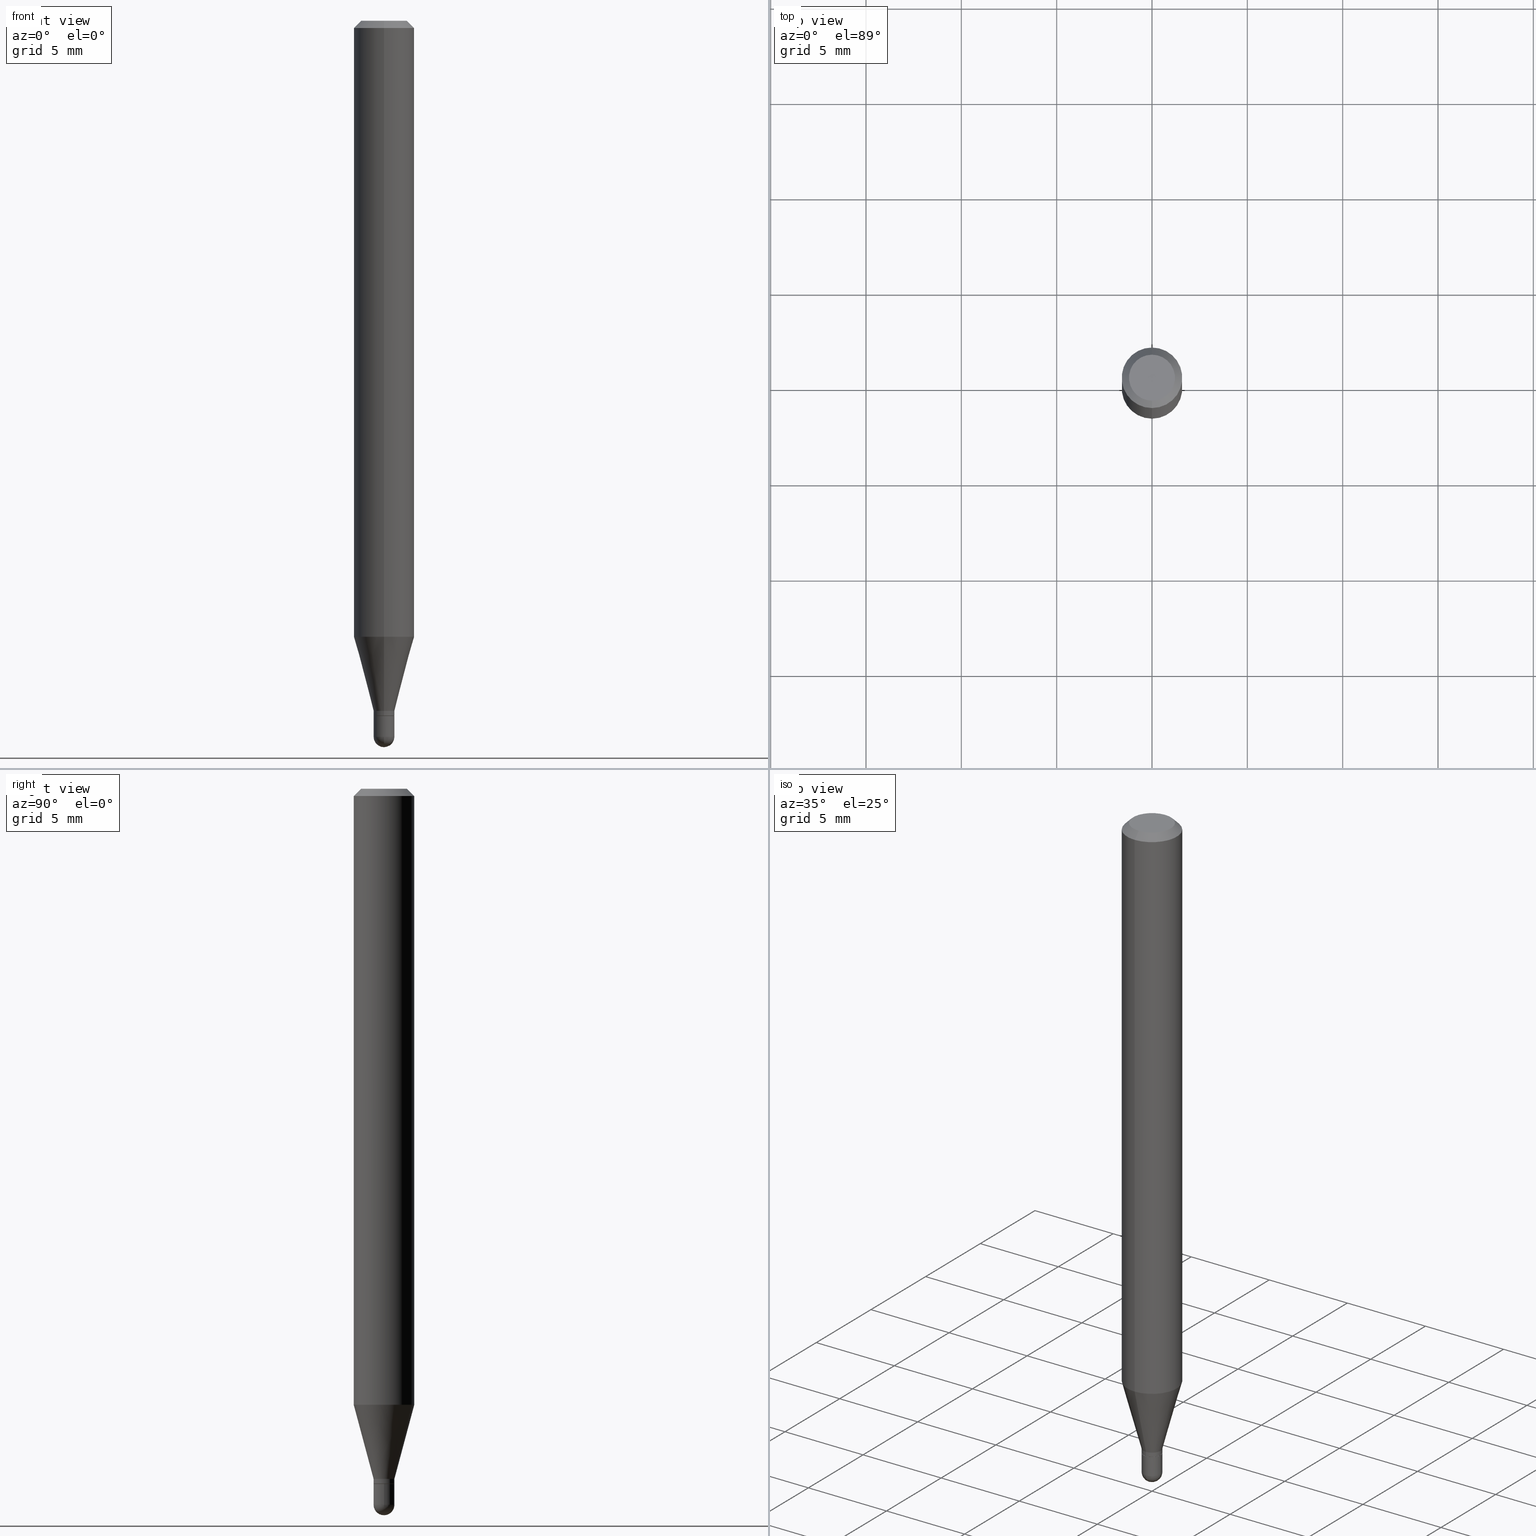
[diagram: canonical four-view strip — front | top / right | iso, engineering-drawing reading convention]
A machine part, canonical four-view strip (front | top / right | iso — engineering-drawing reading convention). The complete STEP part file that produces these views, byte-faithful:
ISO-10303-21;
HEADER;
FILE_DESCRIPTION (( 'STEP AP203' ),
    '1' );
FILE_NAME ('00707.STEP',
    '2024-03-07T18:04:39',
    ( '' ),
    ( '' ),
    'SwSTEP 2.0',
    'SolidWorks 2023',
    '' );
FILE_SCHEMA (( 'CONFIG_CONTROL_DESIGN' ));
ENDSEC;

DATA;
#1 = ORIENTED_EDGE ( 'NONE', *, *, #300, .F. ) ;
#2 = LINE ( 'NONE', #149, #217 ) ;
#3 = CIRCLE ( 'NONE', #387, 0.02149999999999991848 ) ;
#4 = CONICAL_SURFACE ( 'NONE', #348, 0.06250000000000000000, 0.7853981633974483900 ) ;
#5 = ADVANCED_FACE ( 'NONE', ( #263 ), #65, .F. ) ;
#6 = DIRECTION ( 'NONE',  ( -6.982962677686265922E-15, -1.000000000000000000, 0.000000000000000000 ) ) ;
#7 = CARTESIAN_POINT ( 'NONE',  ( 4.440892098500938748E-16, 0.06249999999999995143, -0.01500000000000022669 ) ) ;
#8 = CARTESIAN_POINT ( 'NONE',  ( 3.615625629944724521E-29, -5.162155159479591157E-15, -1.478500000000000147 ) ) ;
#9 = CARTESIAN_POINT ( 'NONE',  ( 0.000000000000000000, 0.000000000000000000, 0.000000000000000000 ) ) ;
#10 = DIRECTION ( 'NONE',  ( -2.445456596883876377E-29, 3.491498823257460544E-15, 1.000000000000000000 ) ) ;
#11 = CONICAL_SURFACE ( 'NONE', #243, 0.02099999999999999784, 0.7853981633974739252 ) ;
#12 = FACE_OUTER_BOUND ( 'NONE', #58, .T. ) ;
#13 = FACE_OUTER_BOUND ( 'NONE', #99, .T. ) ;
#14 = CARTESIAN_POINT ( 'NONE',  ( 2.984279490192748343E-16, 0.02149999999999494329, -1.425000000000000266 ) ) ;
#15 = ORIENTED_EDGE ( 'NONE', *, *, #395, .T. ) ;
#16 = VECTOR ( 'NONE', #294, 39.37007874015748143 ) ;
#17 = AXIS2_PLACEMENT_3D ( 'NONE', #490, #371, #332 ) ;
#18 = EDGE_LOOP ( 'NONE', ( #174, #100, #187, #223, #309 ) ) ;
#19 = APPROVAL ( #264, 'UNSPECIFIED' ) ;
#20 = DIRECTION ( 'NONE',  ( -2.445456596883876658E-29, 3.491498823257460150E-15, 1.000000000000000000 ) ) ;
#21 = VERTEX_POINT ( 'NONE', #75 ) ;
#22 = CARTESIAN_POINT ( 'NONE',  ( 3.668184895325816808E-31, -5.237248234886194588E-17, -0.01500000000000000812 ) ) ;
#23 = ORIENTED_EDGE ( 'NONE', *, *, #296, .F. ) ;
#24 = VERTEX_POINT ( 'NONE', #110 ) ;
#25 = ADVANCED_FACE ( 'NONE', ( #321 ), #439, .T. ) ;
#26 = ORIENTED_EDGE ( 'NONE', *, *, #322, .F. ) ;
#27 = CIRCLE ( 'NONE', #208, 0.06250000000000000000 ) ;
#28 = PERSON_AND_ORGANIZATION ( #405, #432 ) ;
#29 = DIRECTION ( 'NONE',  ( -6.982962677686265922E-15, -1.000000000000000000, 0.000000000000000000 ) ) ;
#30 = PRODUCT_DEFINITION_SHAPE ( 'NONE', 'NONE',  #315 ) ;
#31 = ORIENTED_EDGE ( 'NONE', *, *, #274, .F. ) ;
#32 = APPROVAL_STATUS ( 'not_yet_approved' ) ;
#33 = CARTESIAN_POINT ( 'NONE',  ( 3.613787022422989032E-29, -5.164788150097758398E-15, -1.478500000000000147 ) ) ;
#34 = COORDINATED_UNIVERSAL_TIME_OFFSET ( 5, 0, .BEHIND. ) ;
#35 = DIRECTION ( 'NONE',  ( -2.445456596883876377E-29, 3.491498823257460544E-15, 1.000000000000000000 ) ) ;
#36 = AXIS2_PLACEMENT_3D ( 'NONE', #273, #155, #192 ) ;
#37 = CC_DESIGN_APPROVAL ( #66, ( #350 ) ) ;
#38 = DIRECTION ( 'NONE',  ( -2.445456596883876658E-29, 3.491498823257460150E-15, 1.000000000000000000 ) ) ;
#39 = FACE_OUTER_BOUND ( 'NONE', #140, .T. ) ;
#40 = EDGE_CURVE ( 'NONE', #311, #351, #312, .T. ) ;
#41 = DIRECTION ( 'NONE',  ( 1.000000000000000000, -6.982962677686263555E-15, 0.000000000000000000 ) ) ;
#42 = FACE_OUTER_BOUND ( 'NONE', #139, .T. ) ;
#43 = VECTOR ( 'NONE', #472, 39.37007874015748143 ) ;
#44 = DIRECTION ( 'NONE',  ( -7.105427357601001070E-15, -1.000000000000000000, 0.000000000000000000 ) ) ;
#45 = FACE_OUTER_BOUND ( 'NONE', #266, .T. ) ;
#46 = LINE ( 'NONE', #198, #280 ) ;
#47 = DIRECTION ( 'NONE',  ( -2.445456596883876377E-29, 3.491498823257460544E-15, 1.000000000000000000 ) ) ;
#48 = DIRECTION ( 'NONE',  ( -2.445468806185136597E-29, 3.491481338843145583E-15, 1.000000000000000000 ) ) ;
#49 = CIRCLE ( 'NONE', #477, 0.02149999999999992195 ) ;
#50 = VECTOR ( 'NONE', #434, 39.37007874015748143 ) ;
#51 = CC_DESIGN_APPROVAL ( #19, ( #315 ) ) ;
#52 = DIRECTION ( 'NONE',  ( 1.000000000000000000, -6.982962677686265922E-15, 4.876176775795935232E-29 ) ) ;
#53 = DIRECTION ( 'NONE',  ( -6.982962677686265922E-15, -1.000000000000000000, 3.491498823257460150E-15 ) ) ;
#54 = ORIENTED_EDGE ( 'NONE', *, *, #188, .F. ) ;
#55 = ORIENTED_EDGE ( 'NONE', *, *, #322, .T. ) ;
#56 = ADVANCED_FACE ( 'NONE', ( #79 ), #228, .T. ) ;
#57 = LENGTH_MEASURE_WITH_UNIT ( LENGTH_MEASURE( 0.02539999999999999897 ), #385 );
#58 = EDGE_LOOP ( 'NONE', ( #427, #219, #145, #31 ) ) ;
#59 = ORIENTED_EDGE ( 'NONE', *, *, #496, .F. ) ;
#60 = DIRECTION ( 'NONE',  ( 2.445456596883876377E-29, -3.491498823257460544E-15, -1.000000000000000000 ) ) ;
#61 = AXIS2_PLACEMENT_3D ( 'NONE', #195, #190, #29 ) ;
#62 = APPROVAL_PERSON_ORGANIZATION ( #28, #378, #231 ) ;
#63 = ORIENTED_EDGE ( 'NONE', *, *, #393, .T. ) ;
#64 = DIRECTION ( 'NONE',  ( 2.445456596883876377E-29, -3.491498823257460544E-15, -1.000000000000000000 ) ) ;
#65 = PLANE ( 'NONE',  #323 ) ;
#66 = APPROVAL ( #69, 'UNSPECIFIED' ) ;
#67 = CARTESIAN_POINT ( 'NONE',  ( 0.000000000000000000, 0.000000000000000000, 0.000000000000000000 ) ) ;
#68 = EDGE_LOOP ( 'NONE', ( #402, #419, #59, #301 ) ) ;
#69 = APPROVAL_STATUS ( 'not_yet_approved' ) ;
#70 = DIRECTION ( 'NONE',  ( -2.445456596883876377E-29, 3.491498823257460544E-15, 1.000000000000000000 ) ) ;
#71 = ORIENTED_EDGE ( 'NONE', *, *, #185, .F. ) ;
#72 = AXIS2_PLACEMENT_3D ( 'NONE', #115, #287, #442 ) ;
#73 = AXIS2_PLACEMENT_3D ( 'NONE', #484, #48, #127 ) ;
#74 = APPROVAL_DATE_TIME ( #392, #66 ) ;
#75 = CARTESIAN_POINT ( 'NONE',  ( 0.02150000000000000522, -5.236349137930007031E-15, -1.478500000000000147 ) ) ;
#76 = CALENDAR_DATE ( 2024, 7, 3 ) ;
#77 = CARTESIAN_POINT ( 'NONE',  ( -3.773273898774340269E-16, -0.04749999999999999362, 1.569867050225781996E-16 ) ) ;
#78 = CALENDAR_DATE ( 2024, 7, 3 ) ;
#79 = FACE_OUTER_BOUND ( 'NONE', #303, .T. ) ;
#80 = EDGE_LOOP ( 'NONE', ( #500, #468, #420, #277 ) ) ;
#81 = CIRCLE ( 'NONE', #270, 0.02150000000000002257 ) ;
#82 = DIRECTION ( 'NONE',  ( 6.982962677686265922E-15, 1.000000000000000000, -3.491498823257460150E-15 ) ) ;
#83 = EDGE_CURVE ( 'NONE', #252, #351, #49, .T. ) ;
#84 = ORIENTED_EDGE ( 'NONE', *, *, #185, .T. ) ;
#85 = CARTESIAN_POINT ( 'NONE',  ( -1.501336975702196014E-16, -0.02150000000000500816, -1.434500000000000330 ) ) ;
#86 = DIRECTION ( 'NONE',  ( -2.445456596883876377E-29, 3.491498823257460544E-15, 1.000000000000000000 ) ) ;
#87 = DIRECTION ( 'NONE',  ( 1.000000000000000000, -6.982962677686263555E-15, 0.000000000000000000 ) ) ;
#88 = AXIS2_PLACEMENT_3D ( 'NONE', #126, #326, #41 ) ;
#89 = CIRCLE ( 'NONE', #105, 0.02150000000000000175 ) ;
#90 = DIRECTION ( 'NONE',  ( 1.000000000000000000, -6.982962677686265133E-15, 0.000000000000000000 ) ) ;
#91 = CYLINDRICAL_SURFACE ( 'NONE', #114, 0.02149999999999991848 ) ;
#92 = DIRECTION ( 'NONE',  ( -6.982962677686266711E-15, -1.000000000000000000, 3.491498823257460939E-15 ) ) ;
#93 = DIRECTION ( 'NONE',  ( -2.445468806185136597E-29, 3.491481338843145583E-15, 1.000000000000000000 ) ) ;
#94 = CONICAL_SURFACE ( 'NONE', #61, 0.02099999999999999784, 0.7853981633974739252 ) ;
#95 = DIRECTION ( 'NONE',  ( 6.982962677686265922E-15, 1.000000000000000000, -3.483106191921935554E-15 ) ) ;
#96 = APPROVAL_PERSON_ORGANIZATION ( #225, #66, #357 ) ;
#97 = DIRECTION ( 'NONE',  ( -2.445468806185136597E-29, 3.491481338843145583E-15, 1.000000000000000000 ) ) ;
#98 = EDGE_CURVE ( 'NONE', #499, #384, #158, .T. ) ;
#99 = EDGE_LOOP ( 'NONE', ( #216, #382, #337, #400 ) ) ;
#100 = ORIENTED_EDGE ( 'NONE', *, *, #241, .T. ) ;
#101 = CARTESIAN_POINT ( 'NONE',  ( 3.667283905516837151E-29, -5.238538503573802192E-15, -1.500000000000000222 ) ) ;
#102 = ORIENTED_EDGE ( 'NONE', *, *, #224, .T. ) ;
#103 = CARTESIAN_POINT ( 'NONE',  ( -1.527666881883854620E-16, -0.02150000000000517816, -1.478500000000000147 ) ) ;
#104 = CIRCLE ( 'NONE', #72, 0.02150000000000002257 ) ;
#105 = AXIS2_PLACEMENT_3D ( 'NONE', #206, #97, #367 ) ;
#106 = EDGE_LOOP ( 'NONE', ( #494, #137 ) ) ;
#107 = PERSON_AND_ORGANIZATION ( #405, #432 ) ;
#108 = VERTEX_POINT ( 'NONE', #119 ) ;
#109 = PERSON_AND_ORGANIZATION_ROLE ( 'creator' ) ;
#110 = CARTESIAN_POINT ( 'NONE',  ( 4.440892098500934804E-16, 0.06249999999999553135, -1.271985916889676771 ) ) ;
#111 = PRODUCT ( '00707', '00707', '', ( #342 ) ) ;
#112 = DIRECTION ( 'NONE',  ( 6.982962677686266711E-15, 1.000000000000000000, 0.000000000000000000 ) ) ;
#113 = AXIS2_PLACEMENT_3D ( 'NONE', #8, #164, #87 ) ;
#114 = AXIS2_PLACEMENT_3D ( 'NONE', #408, #373, #327 ) ;
#115 = CARTESIAN_POINT ( 'NONE',  ( 3.613787022422989032E-29, -5.164788150097758398E-15, -1.478500000000000147 ) ) ;
#116 = APPROVAL_DATE_TIME ( #268, #19 ) ;
#117 = DIRECTION ( 'NONE',  ( -6.982962677686266711E-15, -1.000000000000000000, 0.000000000000000000 ) ) ;
#118 = EDGE_CURVE ( 'NONE', #501, #150, #269, .T. ) ;
#119 = CARTESIAN_POINT ( 'NONE',  ( 1.501336975702909686E-16, 0.02149999999999484962, -1.478500000000000147 ) ) ;
#120 = AXIS2_PLACEMENT_3D ( 'NONE', #390, #234, #512 ) ;
#121 = ADVANCED_FACE ( 'NONE', ( #435 ), #11, .T. ) ;
#122 = CARTESIAN_POINT ( 'NONE',  ( 3.509247736875671532E-29, -5.010275721239914035E-15, -1.435000000000000053 ) ) ;
#123 = ORIENTED_EDGE ( 'NONE', *, *, #395, .F. ) ;
#124 = CARTESIAN_POINT ( 'NONE',  ( 3.484775650559524181E-29, -4.975385823141882054E-15, -1.425000000000000266 ) ) ;
#125 = LINE ( 'NONE', #297, #16 ) ;
#126 = CARTESIAN_POINT ( 'NONE',  ( 3.615625629944724521E-29, -5.162155159479591157E-15, -1.478500000000000147 ) ) ;
#127 = DIRECTION ( 'NONE',  ( 1.000000000000000000, -6.982962677686265922E-15, 4.876176775795935232E-29 ) ) ;
#128 = CC_DESIGN_SECURITY_CLASSIFICATION ( #160, ( #350 ) ) ;
#129 = DIRECTION ( 'NONE',  ( 1.839019923739601104E-15, 0.2588190451025250693, 0.9659258262890670910 ) ) ;
#130 = CARTESIAN_POINT ( 'NONE',  ( 3.110586351601244859E-29, -4.441137332020368140E-15, -1.271985916889676549 ) ) ;
#131 = DIRECTION ( 'NONE',  ( 6.982962677686265922E-15, 1.000000000000000000, -3.483106191921935554E-15 ) ) ;
#132 = EDGE_CURVE ( 'NONE', #351, #252, #167, .T. ) ;
#133 = DIRECTION ( 'NONE',  ( -2.445468806185136877E-29, 3.491481338843145188E-15, 1.000000000000000000 ) ) ;
#134 = AXIS2_PLACEMENT_3D ( 'NONE', #328, #365, #486 ) ;
#135 = CARTESIAN_POINT ( 'NONE',  ( 4.440892098500625669E-16, 0.06250000000000000000, -2.182186764535912840E-16 ) ) ;
#136 = DIMENSIONAL_EXPONENTS ( 1.000000000000000000, 0.000000000000000000, 0.000000000000000000, 0.000000000000000000, 0.000000000000000000, 0.000000000000000000, 0.000000000000000000 ) ;
#137 = ORIENTED_EDGE ( 'NONE', *, *, #423, .T. ) ;
#138 = DIRECTION ( 'NONE',  ( 0.000000000000000000, 0.000000000000000000, 1.000000000000000000 ) ) ;
#139 = EDGE_LOOP ( 'NONE', ( #84, #391, #215, #426, #55 ) ) ;
#140 = EDGE_LOOP ( 'NONE', ( #159, #161, #299, #343 ) ) ;
#141 = PERSON_AND_ORGANIZATION ( #405, #432 ) ;
#142 = VERTEX_POINT ( 'NONE', #77 ) ;
#143 = DIRECTION ( 'NONE',  ( -6.982962677686265922E-15, -1.000000000000000000, 3.491498823257460544E-15 ) ) ;
#144 = AXIS2_PLACEMENT_3D ( 'NONE', #173, #302, #53 ) ;
#145 = ORIENTED_EDGE ( 'NONE', *, *, #496, .T. ) ;
#146 = DATE_TIME_ROLE ( 'classification_date' ) ;
#147 = VERTEX_POINT ( 'NONE', #186 ) ;
#148 = ADVANCED_FACE ( 'NONE', ( #39 ), #182, .T. ) ;
#149 = CARTESIAN_POINT ( 'NONE',  ( 0.02150000000000000522, -1.501336975702547550E-16, 1.048378006796126378E-30 ) ) ;
#150 = VERTEX_POINT ( 'NONE', #437 ) ;
#151 = PERSON_AND_ORGANIZATION ( #405, #432 ) ;
#152 = CARTESIAN_POINT ( 'NONE',  ( -1.501336975702193055E-16, -0.02150000000000489714, -1.425000000000000266 ) ) ;
#153 = VECTOR ( 'NONE', #133, 39.37007874015748143 ) ;
#154 = PERSON_AND_ORGANIZATION ( #405, #432 ) ;
#155 = DIRECTION ( 'NONE',  ( -2.445456596883876377E-29, 3.491498823257460544E-15, 1.000000000000000000 ) ) ;
#156 = DIRECTION ( 'NONE',  ( -4.937700262164674260E-15, -0.7071067811865632269, 0.7071067811865319186 ) ) ;
#157 = CARTESIAN_POINT ( 'NONE',  ( 3.509230216528362656E-29, -5.010300811374456056E-15, -1.435000000000000053 ) ) ;
#158 = CIRCLE ( 'NONE', #36, 0.02149999999999991848 ) ;
#159 = ORIENTED_EDGE ( 'NONE', *, *, #230, .T. ) ;
#160 = SECURITY_CLASSIFICATION ( '', '', #319 ) ;
#161 = ORIENTED_EDGE ( 'NONE', *, *, #376, .T. ) ;
#162 = DIRECTION ( 'NONE',  ( -2.445456596883876377E-29, 3.491498823257460544E-15, 1.000000000000000000 ) ) ;
#163 = LINE ( 'NONE', #415, #414 ) ;
#164 = DIRECTION ( 'NONE',  ( -2.445468806185136597E-29, 3.491481338843145583E-15, 1.000000000000000000 ) ) ;
#165 = CARTESIAN_POINT ( 'NONE',  ( -0.02150000000000000522, -4.933448752171330920E-15, -1.478500000000000147 ) ) ;
#166 = DIRECTION ( 'NONE',  ( -2.445456596883876377E-29, 3.491498823257460544E-15, 1.000000000000000000 ) ) ;
#167 = CIRCLE ( 'NONE', #347, 0.02149999999999992195 ) ;
#168 = AXIS2_PLACEMENT_3D ( 'NONE', #67, #257, #143 ) ;
#169 = PLANE ( 'NONE',  #227 ) ;
#170 = ADVANCED_FACE ( 'NONE', ( #361 ), #94, .T. ) ;
#171 = MANIFOLD_SOLID_BREP ( 'Body-Move/Copy2[2]', #452 ) ;
#172 = DIRECTION ( 'NONE',  ( -2.445456596883876658E-29, 3.491498823257460150E-15, 1.000000000000000000 ) ) ;
#173 = CARTESIAN_POINT ( 'NONE',  ( 3.509230216528362656E-29, -5.010300811374456056E-15, -1.435000000000000053 ) ) ;
#174 = ORIENTED_EDGE ( 'NONE', *, *, #416, .F. ) ;
#175 = CIRCLE ( 'NONE', #471, 0.06250000000000000000 ) ;
#176 = ORIENTED_EDGE ( 'NONE', *, *, #286, .T. ) ;
#177 = APPLICATION_CONTEXT ( 'configuration controlled 3d designs of mechanical parts and assemblies' ) ;
#178 = ORIENTED_EDGE ( 'NONE', *, *, #431, .T. ) ;
#179 = FACE_OUTER_BOUND ( 'NONE', #386, .T. ) ;
#180 = VERTEX_POINT ( 'NONE', #196 ) ;
#181 = APPLICATION_PROTOCOL_DEFINITION ( 'international standard', 'config_control_design', 1994, #317 ) ;
#182 = CONICAL_SURFACE ( 'NONE', #398, 0.02149999999999991848, 0.2617993877991502960 ) ;
#183 = CIRCLE ( 'NONE', #201, 0.02099999999999999784 ) ;
#184 = ORIENTED_EDGE ( 'NONE', *, *, #132, .F. ) ;
#185 = EDGE_CURVE ( 'NONE', #108, #456, #331, .T. ) ;
#186 = CARTESIAN_POINT ( 'NONE',  ( 0.02150000000000000175, -5.160409418810168864E-15, -1.435000000000000053 ) ) ;
#187 = ORIENTED_EDGE ( 'NONE', *, *, #296, .T. ) ;
#188 = EDGE_CURVE ( 'NONE', #481, #252, #429, .T. ) ;
#189 = SHAPE_DEFINITION_REPRESENTATION ( #30, #495 ) ;
#190 = DIRECTION ( 'NONE',  ( -2.445456596883876377E-29, 3.491498823257460544E-15, 1.000000000000000000 ) ) ;
#191 = PERSON_AND_ORGANIZATION_ROLE ( 'design_supplier' ) ;
#192 = DIRECTION ( 'NONE',  ( -6.982962677686266711E-15, -1.000000000000000000, 0.000000000000000000 ) ) ;
#193 = AXIS2_PLACEMENT_3D ( 'NONE', #124, #162, #246 ) ;
#194 = AXIS2_PLACEMENT_3D ( 'NONE', #335, #222, #451 ) ;
#195 = CARTESIAN_POINT ( 'NONE',  ( 3.509230216528362656E-29, -5.010300811374456056E-15, -1.435000000000000053 ) ) ;
#196 = CARTESIAN_POINT ( 'NONE',  ( -0.02150000000000000175, -4.933448752171330920E-15, -1.435000000000000053 ) ) ;
#197 = VERTEX_POINT ( 'NONE', #363 ) ;
#198 = CARTESIAN_POINT ( 'NONE',  ( 4.364351673553919652E-16, 0.06249999999999995143, -0.01500000000000022669 ) ) ;
#199 = CIRCLE ( 'NONE', #413, 0.02099999999999999784 ) ;
#200 = CARTESIAN_POINT ( 'NONE',  ( 1.527666881884555227E-16, 0.02149999999999483921, -1.434500000000000330 ) ) ;
#201 = AXIS2_PLACEMENT_3D ( 'NONE', #443, #166, #450 ) ;
#202 = EDGE_CURVE ( 'NONE', #21, #147, #2, .T. ) ;
#203 = CARTESIAN_POINT ( 'NONE',  ( 3.484775650559524181E-29, -4.975385823141882054E-15, -1.425000000000000266 ) ) ;
#204 = EDGE_CURVE ( 'NONE', #252, #384, #271, .T. ) ;
#205 = DIRECTION ( 'NONE',  ( -2.445456596883876377E-29, 3.491498823257460544E-15, 1.000000000000000000 ) ) ;
#206 = CARTESIAN_POINT ( 'NONE',  ( 3.509247736875671532E-29, -5.010275721239914035E-15, -1.435000000000000053 ) ) ;
#207 = DIRECTION ( 'NONE',  ( -1.000000000000000000, 6.982962677686265922E-15, -4.876176775795935793E-29 ) ) ;
#208 = AXIS2_PLACEMENT_3D ( 'NONE', #377, #461, #295 ) ;
#209 = CC_DESIGN_DATE_AND_TIME_ASSIGNMENT ( #474, #146, ( #160 ) ) ;
#210 = EDGE_CURVE ( 'NONE', #384, #501, #356, .T. ) ;
#211 = CARTESIAN_POINT ( 'NONE',  ( 2.166549602096718093E-46, -3.093289570499301366E-32, -8.859489082151138529E-18 ) ) ;
#212 = CARTESIAN_POINT ( 'NONE',  ( -1.466422162313764710E-16, -0.02100000000000501119, -1.435000000000000053 ) ) ;
#213 = EDGE_LOOP ( 'NONE', ( #258, #123 ) ) ;
#214 =( NAMED_UNIT ( * ) PLANE_ANGLE_UNIT ( ) SI_UNIT ( $, .RADIAN. ) );
#215 = ORIENTED_EDGE ( 'NONE', *, *, #256, .F. ) ;
#216 = ORIENTED_EDGE ( 'NONE', *, *, #362, .F. ) ;
#217 = VECTOR ( 'NONE', #324, 39.37007874015748143 ) ;
#218 = DIRECTION ( 'NONE',  ( 1.000000000000000000, 0.000000000000000000, 0.000000000000000000 ) ) ;
#219 = ORIENTED_EDGE ( 'NONE', *, *, #340, .T. ) ;
#220 = CARTESIAN_POINT ( 'NONE',  ( -4.364351673553605587E-16, -0.06250000000000445477, -1.271985916889676327 ) ) ;
#221 = CARTESIAN_POINT ( 'NONE',  ( 3.316907271900976096E-16, 0.04749999999999999362, -1.702759386458049536E-16 ) ) ;
#222 = DIRECTION ( 'NONE',  ( -2.445456596883876377E-29, 3.491498823257460544E-15, 1.000000000000000000 ) ) ;
#223 = ORIENTED_EDGE ( 'NONE', *, *, #202, .T. ) ;
#224 = EDGE_CURVE ( 'NONE', #498, #108, #104, .T. ) ;
#225 = PERSON_AND_ORGANIZATION ( #405, #432 ) ;
#226 = CIRCLE ( 'NONE', #88, 0.02150000000000000522 ) ;
#227 = AXIS2_PLACEMENT_3D ( 'NONE', #334, #412, #207 ) ;
#228 = SPHERICAL_SURFACE ( 'NONE', #261, 0.02150000000000002257 ) ;
#229 = ORIENTED_EDGE ( 'NONE', *, *, #483, .T. ) ;
#230 = EDGE_CURVE ( 'NONE', #384, #499, #3, .T. ) ;
#231 = APPROVAL_ROLE ( '' ) ;
#232 = DIRECTION ( 'NONE',  ( -6.982962677686266711E-15, -1.000000000000000000, 0.000000000000000000 ) ) ;
#233 = DATE_TIME_ROLE ( 'creation_date' ) ;
#234 = DIRECTION ( 'NONE',  ( -2.445468806185136597E-29, 3.491481338843145583E-15, 1.000000000000000000 ) ) ;
#235 = COORDINATED_UNIVERSAL_TIME_OFFSET ( 5, 0, .BEHIND. ) ;
#236 = DIRECTION ( 'NONE',  ( -6.982962677686266711E-15, -1.000000000000000000, 0.000000000000000000 ) ) ;
#237 = AXIS2_PLACEMENT_3D ( 'NONE', #497, #138, #218 ) ;
#238 = CARTESIAN_POINT ( 'NONE',  ( 3.484775650559524181E-29, -4.975385823141882054E-15, -1.425000000000000266 ) ) ;
#239 = ORIENTED_EDGE ( 'NONE', *, *, #241, .F. ) ;
#240 = DIRECTION ( 'NONE',  ( -2.445456596883876377E-29, 3.491498823257460544E-15, 1.000000000000000000 ) ) ;
#241 = EDGE_CURVE ( 'NONE', #456, #465, #226, .T. ) ;
#242 = DIRECTION ( 'NONE',  ( -2.445468806185136597E-29, 3.491481338843145583E-15, 1.000000000000000000 ) ) ;
#243 = AXIS2_PLACEMENT_3D ( 'NONE', #157, #70, #320 ) ;
#244 = LINE ( 'NONE', #293, #153 ) ;
#245 = AXIS2_PLACEMENT_3D ( 'NONE', #291, #205, #410 ) ;
#246 = DIRECTION ( 'NONE',  ( -6.982962677686266711E-15, -1.000000000000000000, 0.000000000000000000 ) ) ;
#247 = CYLINDRICAL_SURFACE ( 'NONE', #17, 0.06250000000000000000 ) ;
#248 = DESIGN_CONTEXT ( 'detailed design', #177, 'design' ) ;
#249 = FACE_OUTER_BOUND ( 'NONE', #106, .T. ) ;
#250 = CYLINDRICAL_SURFACE ( 'NONE', #372, 0.02150000000000000522 ) ;
#251 = AXIS2_PLACEMENT_3D ( 'NONE', #33, #399, #401 ) ;
#252 = VERTEX_POINT ( 'NONE', #85 ) ;
#253 = CIRCLE ( 'NONE', #366, 0.04749999999999999362 ) ;
#254 = ORIENTED_EDGE ( 'NONE', *, *, #83, .T. ) ;
#255 = EDGE_LOOP ( 'NONE', ( #421, #15, #379, #184 ) ) ;
#256 = EDGE_CURVE ( 'NONE', #147, #180, #463, .T. ) ;
#257 = DIRECTION ( 'NONE',  ( -2.445456596883876377E-29, 3.491498823257460544E-15, 1.000000000000000000 ) ) ;
#258 = ORIENTED_EDGE ( 'NONE', *, *, #286, .F. ) ;
#259 = ORIENTED_EDGE ( 'NONE', *, *, #431, .F. ) ;
#260 = ORIENTED_EDGE ( 'NONE', *, *, #274, .T. ) ;
#261 = AXIS2_PLACEMENT_3D ( 'NONE', #279, #276, #112 ) ;
#262 = LINE ( 'NONE', #135, #281 ) ;
#263 = FACE_OUTER_BOUND ( 'NONE', #504, .T. ) ;
#264 = APPROVAL_STATUS ( 'not_yet_approved' ) ;
#265 = ADVANCED_FACE ( 'NONE', ( #403 ), #508, .T. ) ;
#266 = EDGE_LOOP ( 'NONE', ( #254, #305, #313, #459 ) ) ;
#267 = CC_DESIGN_PERSON_AND_ORGANIZATION_ASSIGNMENT ( #141, #307, ( #111 ) ) ;
#268 = DATE_AND_TIME ( #466, #478 ) ;
#269 = LINE ( 'NONE', #397, #298 ) ;
#270 = AXIS2_PLACEMENT_3D ( 'NONE', #283, #440, #44 ) ;
#271 = LINE ( 'NONE', #507, #50 ) ;
#272 = DATE_AND_TIME ( #78, #359 ) ;
#273 = CARTESIAN_POINT ( 'NONE',  ( 3.484775650559524181E-29, -4.975385823141882054E-15, -1.425000000000000266 ) ) ;
#274 = EDGE_CURVE ( 'NONE', #197, #422, #46, .T. ) ;
#275 = CALENDAR_DATE ( 2024, 7, 3 ) ;
#276 = DIRECTION ( 'NONE',  ( -1.000000000000000000, 6.982962677686266711E-15, -4.883557194083112901E-29 ) ) ;
#277 = ORIENTED_EDGE ( 'NONE', *, *, #483, .F. ) ;
#278 = CIRCLE ( 'NONE', #306, 0.02150000000000000522 ) ;
#279 = CARTESIAN_POINT ( 'NONE',  ( 3.613787022422989032E-29, -5.164788150097758398E-15, -1.478500000000000147 ) ) ;
#280 = VECTOR ( 'NONE', #446, 39.37007874015748143 ) ;
#281 = VECTOR ( 'NONE', #20, 39.37007874015748143 ) ;
#282 = EDGE_LOOP ( 'NONE', ( #1, #102, #26, #23 ) ) ;
#283 = CARTESIAN_POINT ( 'NONE',  ( 3.613787022422989032E-29, -5.164788150097758398E-15, -1.478500000000000147 ) ) ;
#284 = EDGE_CURVE ( 'NONE', #422, #150, #290, .T. ) ;
#285 = PRODUCT_RELATED_PRODUCT_CATEGORY ( 'detail', '', ( #111 ) ) ;
#286 = EDGE_CURVE ( 'NONE', #481, #311, #199, .T. ) ;
#287 = DIRECTION ( 'NONE',  ( 1.000000000000000000, -6.982962677686265922E-15, 4.883557194083112340E-29 ) ) ;
#288 = CARTESIAN_POINT ( 'NONE',  ( -1.501336975702193055E-16, -0.02150000000000489714, -1.425000000000000266 ) ) ;
#289 = DIRECTION ( 'NONE',  ( -2.445468806185136597E-29, 3.491481338843145583E-15, 1.000000000000000000 ) ) ;
#290 = CIRCLE ( 'NONE', #134, 0.06250000000000000000 ) ;
#291 = CARTESIAN_POINT ( 'NONE',  ( 2.166549602096718093E-46, -3.093289570499301366E-32, -8.859489082151138529E-18 ) ) ;
#292 = APPROVAL_PERSON_ORGANIZATION ( #107, #19, #491 ) ;
#293 = CARTESIAN_POINT ( 'NONE',  ( -0.02150000000000000522, 1.527666881884215770E-16, -1.057571044404804875E-30 ) ) ;
#294 = DIRECTION ( 'NONE',  ( -4.851104656540964275E-15, -0.7071067811865500152, -0.7071067811865450192 ) ) ;
#295 = DIRECTION ( 'NONE',  ( -6.982962677686265922E-15, -1.000000000000000000, 4.370956789862821150E-15 ) ) ;
#296 = EDGE_CURVE ( 'NONE', #465, #21, #278, .T. ) ;
#297 = CARTESIAN_POINT ( 'NONE',  ( -4.287811248607203282E-16, -0.06250000000000005551, -0.01499999999999979128 ) ) ;
#298 = VECTOR ( 'NONE', #38, 39.37007874015748143 ) ;
#299 = ORIENTED_EDGE ( 'NONE', *, *, #336, .F. ) ;
#300 = EDGE_CURVE ( 'NONE', #498, #465, #81, .T. ) ;
#301 = ORIENTED_EDGE ( 'NONE', *, *, #118, .F. ) ;
#302 = DIRECTION ( 'NONE',  ( -2.445456596883876377E-29, 3.491498823257460150E-15, 1.000000000000000000 ) ) ;
#303 = EDGE_LOOP ( 'NONE', ( #355, #354, #239, #71 ) ) ;
#304 = FACE_OUTER_BOUND ( 'NONE', #213, .T. ) ;
#305 = ORIENTED_EDGE ( 'NONE', *, *, #362, .T. ) ;
#306 = AXIS2_PLACEMENT_3D ( 'NONE', #407, #242, #482 ) ;
#307 = PERSON_AND_ORGANIZATION_ROLE ( 'design_owner' ) ;
#308 = CIRCLE ( 'NONE', #245, 0.04749999999999999362 ) ;
#309 = ORIENTED_EDGE ( 'NONE', *, *, #423, .F. ) ;
#310 = CC_DESIGN_PERSON_AND_ORGANIZATION_ASSIGNMENT ( #506, #396, ( #160 ) ) ;
#311 = VERTEX_POINT ( 'NONE', #368 ) ;
#312 = LINE ( 'NONE', #470, #406 ) ;
#313 = ORIENTED_EDGE ( 'NONE', *, *, #230, .F. ) ;
#314 = COORDINATED_UNIVERSAL_TIME_OFFSET ( 5, 0, .BEHIND. ) ;
#315 = PRODUCT_DEFINITION ( 'UNKNOWN', '', #350, #248 ) ;
#316 = CARTESIAN_POINT ( 'NONE',  ( 3.508007488229920676E-29, -5.008555061962828303E-15, -1.434500000000000330 ) ) ;
#317 = APPLICATION_CONTEXT ( 'configuration controlled 3d designs of mechanical parts and assemblies' ) ;
#318 = ORIENTED_EDGE ( 'NONE', *, *, #118, .T. ) ;
#319 = SECURITY_CLASSIFICATION_LEVEL ( 'unclassified' ) ;
#320 = DIRECTION ( 'NONE',  ( -6.982962677686265922E-15, -1.000000000000000000, 0.000000000000000000 ) ) ;
#321 = FACE_OUTER_BOUND ( 'NONE', #282, .T. ) ;
#322 = EDGE_CURVE ( 'NONE', #21, #108, #338, .T. ) ;
#323 = AXIS2_PLACEMENT_3D ( 'NONE', #221, #346, #82 ) ;
#324 = DIRECTION ( 'NONE',  ( -2.445468806185136877E-29, 3.491481338843145188E-15, 1.000000000000000000 ) ) ;
#325 = LOCAL_TIME ( 13, 4, 39.00000000000000000, #34 ) ;
#326 = DIRECTION ( 'NONE',  ( -2.445468806185136597E-29, 3.491481338843145583E-15, 1.000000000000000000 ) ) ;
#327 = DIRECTION ( 'NONE',  ( -6.982962677686266711E-15, -1.000000000000000000, 3.491498823257460939E-15 ) ) ;
#328 = CARTESIAN_POINT ( 'NONE',  ( 3.668184895325816808E-31, -5.237248234886194588E-17, -0.01500000000000000812 ) ) ;
#329 = LINE ( 'NONE', #448, #424 ) ;
#330 = CC_DESIGN_PERSON_AND_ORGANIZATION_ASSIGNMENT ( #389, #191, ( #350 ) ) ;
#331 = CIRCLE ( 'NONE', #120, 0.02150000000000000522 ) ;
#332 = DIRECTION ( 'NONE',  ( -6.982962677686265922E-15, -1.000000000000000000, 3.491498823257460544E-15 ) ) ;
#333 = FACE_OUTER_BOUND ( 'NONE', #18, .T. ) ;
#334 = CARTESIAN_POINT ( 'NONE',  ( 1.501336975702898100E-16, 0.02149999999999498840, -1.435000000000000053 ) ) ;
#335 = CARTESIAN_POINT ( 'NONE',  ( 3.668184895325816808E-31, -5.237248234886194588E-17, -0.01500000000000000812 ) ) ;
#336 = EDGE_CURVE ( 'NONE', #501, #24, #175, .T. ) ;
#337 = ORIENTED_EDGE ( 'NONE', *, *, #204, .T. ) ;
#338 = CIRCLE ( 'NONE', #113, 0.02150000000000000522 ) ;
#339 = PLANE ( 'NONE',  #144 ) ;
#340 = EDGE_CURVE ( 'NONE', #142, #150, #125, .T. ) ;
#341 = ORIENTED_EDGE ( 'NONE', *, *, #284, .T. ) ;
#342 = MECHANICAL_CONTEXT ( 'NONE', #317, 'mechanical' ) ;
#343 = ORIENTED_EDGE ( 'NONE', *, *, #210, .F. ) ;
#344 = FACE_OUTER_BOUND ( 'NONE', #68, .T. ) ;
#345 = MANIFOLD_SOLID_BREP ( 'Body-Move/Copy2[1]', #358 ) ;
#346 = DIRECTION ( 'NONE',  ( 2.445456596883876377E-29, -3.491498823257460150E-15, -1.000000000000000000 ) ) ;
#347 = AXIS2_PLACEMENT_3D ( 'NONE', #360, #35, #232 ) ;
#348 = AXIS2_PLACEMENT_3D ( 'NONE', #492, #64, #95 ) ;
#349 = PERSON_AND_ORGANIZATION_ROLE ( 'creator' ) ;
#350 = PRODUCT_DEFINITION_FORMATION_WITH_SPECIFIED_SOURCE ( 'ANY', '', #111, .NOT_KNOWN. ) ;
#351 = VERTEX_POINT ( 'NONE', #200 ) ;
#352 = CALENDAR_DATE ( 2024, 7, 3 ) ;
#353 = ADVANCED_FACE ( 'NONE', ( #333 ), #250, .T. ) ;
#354 = ORIENTED_EDGE ( 'NONE', *, *, #300, .T. ) ;
#355 = ORIENTED_EDGE ( 'NONE', *, *, #224, .F. ) ;
#356 = LINE ( 'NONE', #152, #43 ) ;
#357 = APPROVAL_ROLE ( '' ) ;
#358 = CLOSED_SHELL ( 'NONE', ( #380, #56, #449, #25, #353 ) ) ;
#359 = LOCAL_TIME ( 13, 4, 39.00000000000000000, #235 ) ;
#360 = CARTESIAN_POINT ( 'NONE',  ( 3.508007488229920676E-29, -5.008555061962828303E-15, -1.434500000000000330 ) ) ;
#361 = FACE_OUTER_BOUND ( 'NONE', #255, .T. ) ;
#362 = EDGE_CURVE ( 'NONE', #351, #499, #329, .T. ) ;
#363 = CARTESIAN_POINT ( 'NONE',  ( 3.840629472727447874E-16, 0.04749999999999999362, -1.747056831868805136E-16 ) ) ;
#364 = AXIS2_PLACEMENT_3D ( 'NONE', #122, #289, #90 ) ;
#365 = DIRECTION ( 'NONE',  ( -2.445456596883876377E-29, 3.491498823257460544E-15, 1.000000000000000000 ) ) ;
#366 = AXIS2_PLACEMENT_3D ( 'NONE', #211, #488, #369 ) ;
#367 = DIRECTION ( 'NONE',  ( 1.000000000000000000, -6.982962677686265133E-15, 0.000000000000000000 ) ) ;
#368 = CARTESIAN_POINT ( 'NONE',  ( 1.509903313490560842E-16, 0.02099999999999498795, -1.435000000000000053 ) ) ;
#369 = DIRECTION ( 'NONE',  ( -6.982962677686266711E-15, -1.000000000000000000, 3.491498823257460939E-15 ) ) ;
#370 = ADVANCED_FACE ( 'NONE', ( #375 ), #247, .T. ) ;
#371 = DIRECTION ( 'NONE',  ( -2.445456596883876377E-29, 3.491498823257460544E-15, 1.000000000000000000 ) ) ;
#372 = AXIS2_PLACEMENT_3D ( 'NONE', #404, #93, #52 ) ;
#373 = DIRECTION ( 'NONE',  ( -2.445456596883876377E-29, 3.491498823257460544E-15, 1.000000000000000000 ) ) ;
#374 = CIRCLE ( 'NONE', #194, 0.06250000000000000000 ) ;
#375 = FACE_OUTER_BOUND ( 'NONE', #383, .T. ) ;
#376 = EDGE_CURVE ( 'NONE', #499, #24, #163, .T. ) ;
#377 = CARTESIAN_POINT ( 'NONE',  ( 3.110586351601244859E-29, -4.441137332020368140E-15, -1.271985916889676549 ) ) ;
#378 = APPROVAL ( #32, 'UNSPECIFIED' ) ;
#379 = ORIENTED_EDGE ( 'NONE', *, *, #188, .T. ) ;
#380 = ADVANCED_FACE ( 'NONE', ( #42 ), #454, .T. ) ;
#381 =( NAMED_UNIT ( * ) SI_UNIT ( $, .STERADIAN. ) SOLID_ANGLE_UNIT ( ) );
#382 = ORIENTED_EDGE ( 'NONE', *, *, #132, .T. ) ;
#383 = EDGE_LOOP ( 'NONE', ( #411, #229, #318, #480 ) ) ;
#384 = VERTEX_POINT ( 'NONE', #288 ) ;
#385 =( LENGTH_UNIT ( ) NAMED_UNIT ( * ) SI_UNIT ( $, .METRE. ) );
#386 = EDGE_LOOP ( 'NONE', ( #460, #259, #260, #341 ) ) ;
#387 = AXIS2_PLACEMENT_3D ( 'NONE', #203, #240, #479 ) ;
#388 = LOCAL_TIME ( 13, 4, 39.00000000000000000, #510 ) ;
#389 = PERSON_AND_ORGANIZATION ( #405, #432 ) ;
#390 = CARTESIAN_POINT ( 'NONE',  ( 3.615625629944724521E-29, -5.162155159479591157E-15, -1.478500000000000147 ) ) ;
#391 = ORIENTED_EDGE ( 'NONE', *, *, #416, .T. ) ;
#392 = DATE_AND_TIME ( #76, #388 ) ;
#393 = EDGE_CURVE ( 'NONE', #142, #197, #308, .T. ) ;
#394 = CARTESIAN_POINT ( 'NONE',  ( -1.466422162313764710E-16, -0.02100000000000501119, -1.435000000000000053 ) ) ;
#395 = EDGE_CURVE ( 'NONE', #311, #481, #183, .T. ) ;
#396 = PERSON_AND_ORGANIZATION_ROLE ( 'classification_officer' ) ;
#397 = CARTESIAN_POINT ( 'NONE',  ( -4.364351673553916201E-16, -0.06250000000000000000, 2.182186764535912840E-16 ) ) ;
#398 = AXIS2_PLACEMENT_3D ( 'NONE', #238, #476, #117 ) ;
#399 = DIRECTION ( 'NONE',  ( -1.000000000000000000, 6.982962677686266711E-15, -4.883557194083112901E-29 ) ) ;
#400 = ORIENTED_EDGE ( 'NONE', *, *, #98, .F. ) ;
#401 = DIRECTION ( 'NONE',  ( 6.982962677686266711E-15, 1.000000000000000000, 0.000000000000000000 ) ) ;
#402 = ORIENTED_EDGE ( 'NONE', *, *, #336, .T. ) ;
#403 = FACE_OUTER_BOUND ( 'NONE', #80, .T. ) ;
#404 = CARTESIAN_POINT ( 'NONE',  ( 0.000000000000000000, 0.000000000000000000, 0.000000000000000000 ) ) ;
#405 = PERSON ( 'UNSPECIFIED', 'UNSPECIFIED', 'UNSPECIFIED', ('UNSPECIFIED'), ('UNSPECIFIED'), ('UNSPECIFIED') ) ;
#406 = VECTOR ( 'NONE', #511, 39.37007874015748143 ) ;
#407 = CARTESIAN_POINT ( 'NONE',  ( 3.615625629944724521E-29, -5.162155159479591157E-15, -1.478500000000000147 ) ) ;
#408 = CARTESIAN_POINT ( 'NONE',  ( 0.000000000000000000, 0.000000000000000000, 0.000000000000000000 ) ) ;
#409 = CARTESIAN_POINT ( 'NONE',  ( 3.509230216528362656E-29, -5.010300811374456056E-15, -1.435000000000000053 ) ) ;
#410 = DIRECTION ( 'NONE',  ( -6.982962677686266711E-15, -1.000000000000000000, 3.491498823257460939E-15 ) ) ;
#411 = ORIENTED_EDGE ( 'NONE', *, *, #503, .F. ) ;
#412 = DIRECTION ( 'NONE',  ( 2.438088387897960049E-29, -3.491481338843145188E-15, -1.000000000000000000 ) ) ;
#413 = AXIS2_PLACEMENT_3D ( 'NONE', #409, #86, #6 ) ;
#414 = VECTOR ( 'NONE', #129, 39.37007874015748143 ) ;
#415 = CARTESIAN_POINT ( 'NONE',  ( 1.527666881884557939E-16, 0.02149999999999494329, -1.425000000000000266 ) ) ;
#416 = EDGE_CURVE ( 'NONE', #456, #180, #244, .T. ) ;
#417 = CC_DESIGN_DATE_AND_TIME_ASSIGNMENT ( #428, #233, ( #315 ) ) ;
#418 = COORDINATED_UNIVERSAL_TIME_OFFSET ( 5, 0, .BEHIND. ) ;
#419 = ORIENTED_EDGE ( 'NONE', *, *, #503, .T. ) ;
#420 = ORIENTED_EDGE ( 'NONE', *, *, #210, .T. ) ;
#421 = ORIENTED_EDGE ( 'NONE', *, *, #40, .F. ) ;
#422 = VERTEX_POINT ( 'NONE', #7 ) ;
#423 = EDGE_CURVE ( 'NONE', #180, #147, #89, .T. ) ;
#424 = VECTOR ( 'NONE', #172, 39.37007874015748143 ) ;
#425 = AXIS2_PLACEMENT_3D ( 'NONE', #9, #47, #92 ) ;
#426 = ORIENTED_EDGE ( 'NONE', *, *, #202, .F. ) ;
#427 = ORIENTED_EDGE ( 'NONE', *, *, #393, .F. ) ;
#428 = DATE_AND_TIME ( #275, #325 ) ;
#429 = LINE ( 'NONE', #394, #445 ) ;
#430 = ORIENTED_EDGE ( 'NONE', *, *, #83, .F. ) ;
#431 = EDGE_CURVE ( 'NONE', #197, #142, #253, .T. ) ;
#432 = ORGANIZATION ( 'UNSPECIFIED', 'UNSPECIFIED', '' ) ;
#433 = ADVANCED_FACE ( 'NONE', ( #13 ), #91, .T. ) ;
#434 = DIRECTION ( 'NONE',  ( -2.445456596883876658E-29, 3.491498823257460150E-15, 1.000000000000000000 ) ) ;
#435 = FACE_OUTER_BOUND ( 'NONE', #462, .T. ) ;
#436 = APPROVAL_DATE_TIME ( #272, #378 ) ;
#437 = CARTESIAN_POINT ( 'NONE',  ( -4.364351673553912750E-16, -0.06250000000000005551, -0.01499999999999979128 ) ) ;
#438 = CONICAL_SURFACE ( 'NONE', #509, 0.06250000000000000000, 0.7853981633974483900 ) ;
#439 = SPHERICAL_SURFACE ( 'NONE', #251, 0.02150000000000002257 ) ;
#440 = DIRECTION ( 'NONE',  ( -1.000000000000000000, 7.105427357601001070E-15, -4.926315508542082329E-29 ) ) ;
#441 = ADVANCED_FACE ( 'NONE', ( #45 ), #447, .T. ) ;
#442 = DIRECTION ( 'NONE',  ( 6.982962677686265922E-15, 1.000000000000000000, 0.000000000000000000 ) ) ;
#443 = CARTESIAN_POINT ( 'NONE',  ( 3.509230216528362656E-29, -5.010300811374456056E-15, -1.435000000000000053 ) ) ;
#444 = CC_DESIGN_PERSON_AND_ORGANIZATION_ASSIGNMENT ( #154, #109, ( #350 ) ) ;
#445 = VECTOR ( 'NONE', #156, 39.37007874015748143 ) ;
#446 = DIRECTION ( 'NONE',  ( 4.937700262164548042E-15, 0.7071067811865451302, -0.7071067811865499042 ) ) ;
#447 = CYLINDRICAL_SURFACE ( 'NONE', #425, 0.02149999999999991848 ) ;
#448 = CARTESIAN_POINT ( 'NONE',  ( 1.527666881884209361E-16, 0.02149999999999991848, -7.506722470003512234E-17 ) ) ;
#449 = ADVANCED_FACE ( 'NONE', ( #249 ), #169, .F. ) ;
#450 = DIRECTION ( 'NONE',  ( -6.982962677686265922E-15, -1.000000000000000000, 0.000000000000000000 ) ) ;
#451 = DIRECTION ( 'NONE',  ( -6.982962677686265922E-15, -1.000000000000000000, 3.483106191921935554E-15 ) ) ;
#452 = CLOSED_SHELL ( 'NONE', ( #441, #121, #458, #469, #148, #265, #370, #485, #5, #467, #170, #433 ) ) ;
#453 = LOCAL_TIME ( 13, 4, 39.00000000000000000, #314 ) ;
#454 = CYLINDRICAL_SURFACE ( 'NONE', #73, 0.02150000000000000522 ) ;
#455 =( CONVERSION_BASED_UNIT ( 'INCH', #57 ) LENGTH_UNIT ( ) NAMED_UNIT ( #136 ) );
#456 = VERTEX_POINT ( 'NONE', #165 ) ;
#457 = CYLINDRICAL_SURFACE ( 'NONE', #168, 0.06250000000000000000 ) ;
#458 = ADVANCED_FACE ( 'NONE', ( #12 ), #4, .T. ) ;
#459 = ORIENTED_EDGE ( 'NONE', *, *, #204, .F. ) ;
#460 = ORIENTED_EDGE ( 'NONE', *, *, #340, .F. ) ;
#461 = DIRECTION ( 'NONE',  ( -2.445456596883876377E-29, 3.491498823257460544E-15, 1.000000000000000000 ) ) ;
#462 = EDGE_LOOP ( 'NONE', ( #176, #473, #430, #54 ) ) ;
#463 = CIRCLE ( 'NONE', #364, 0.02150000000000000175 ) ;
#464 = APPLICATION_PROTOCOL_DEFINITION ( 'international standard', 'config_control_design', 1994, #177 ) ;
#465 = VERTEX_POINT ( 'NONE', #103 ) ;
#466 = CALENDAR_DATE ( 2024, 7, 3 ) ;
#467 = ADVANCED_FACE ( 'NONE', ( #304 ), #339, .F. ) ;
#468 = ORIENTED_EDGE ( 'NONE', *, *, #98, .T. ) ;
#469 = ADVANCED_FACE ( 'NONE', ( #344 ), #457, .T. ) ;
#470 = CARTESIAN_POINT ( 'NONE',  ( 1.492139745096561033E-16, 0.02099999999999498795, -1.435000000000000053 ) ) ;
#471 = AXIS2_PLACEMENT_3D ( 'NONE', #130, #10, #487 ) ;
#472 = DIRECTION ( 'NONE',  ( -1.807323732225330928E-15, -0.2588190451025182970, 0.9659258262890689783 ) ) ;
#473 = ORIENTED_EDGE ( 'NONE', *, *, #40, .T. ) ;
#474 = DATE_AND_TIME ( #352, #453 ) ;
#475 = CC_DESIGN_PERSON_AND_ORGANIZATION_ASSIGNMENT ( #151, #349, ( #315 ) ) ;
#476 = DIRECTION ( 'NONE',  ( -2.445456596883876377E-29, 3.491498823257460544E-15, 1.000000000000000000 ) ) ;
#477 = AXIS2_PLACEMENT_3D ( 'NONE', #316, #505, #236 ) ;
#478 = LOCAL_TIME ( 13, 4, 39.00000000000000000, #418 ) ;
#479 = DIRECTION ( 'NONE',  ( -6.982962677686266711E-15, -1.000000000000000000, 0.000000000000000000 ) ) ;
#480 = ORIENTED_EDGE ( 'NONE', *, *, #284, .F. ) ;
#481 = VERTEX_POINT ( 'NONE', #212 ) ;
#482 = DIRECTION ( 'NONE',  ( 1.000000000000000000, -6.982962677686263555E-15, 0.000000000000000000 ) ) ;
#483 = EDGE_CURVE ( 'NONE', #24, #501, #27, .T. ) ;
#484 = CARTESIAN_POINT ( 'NONE',  ( 0.000000000000000000, 0.000000000000000000, 0.000000000000000000 ) ) ;
#485 = ADVANCED_FACE ( 'NONE', ( #179 ), #438, .T. ) ;
#486 = DIRECTION ( 'NONE',  ( -6.982962677686265922E-15, -1.000000000000000000, 3.483106191921935554E-15 ) ) ;
#487 = DIRECTION ( 'NONE',  ( -6.982962677686265922E-15, -1.000000000000000000, 4.370956789862821150E-15 ) ) ;
#488 = DIRECTION ( 'NONE',  ( -2.445456596883876377E-29, 3.491498823257460544E-15, 1.000000000000000000 ) ) ;
#489 = UNCERTAINTY_MEASURE_WITH_UNIT (LENGTH_MEASURE( 1.000000000000000082E-05 ), #455, 'distance_accuracy_value', 'NONE');
#490 = CARTESIAN_POINT ( 'NONE',  ( 0.000000000000000000, 0.000000000000000000, 0.000000000000000000 ) ) ;
#491 = APPROVAL_ROLE ( '' ) ;
#492 = CARTESIAN_POINT ( 'NONE',  ( 3.668184895325816808E-31, -5.237248234886194588E-17, -0.01500000000000000812 ) ) ;
#493 = CC_DESIGN_APPROVAL ( #378, ( #160 ) ) ;
#494 = ORIENTED_EDGE ( 'NONE', *, *, #256, .T. ) ;
#495 = ADVANCED_BREP_SHAPE_REPRESENTATION ( '00707', ( #345, #171, #237 ), #502 ) ;
#496 = EDGE_CURVE ( 'NONE', #150, #422, #374, .T. ) ;
#497 = CARTESIAN_POINT ( 'NONE',  ( 0.000000000000000000, 0.000000000000000000, 0.000000000000000000 ) ) ;
#498 = VERTEX_POINT ( 'NONE', #101 ) ;
#499 = VERTEX_POINT ( 'NONE', #14 ) ;
#500 = ORIENTED_EDGE ( 'NONE', *, *, #376, .F. ) ;
#501 = VERTEX_POINT ( 'NONE', #220 ) ;
#502 =( GEOMETRIC_REPRESENTATION_CONTEXT ( 3 ) GLOBAL_UNCERTAINTY_ASSIGNED_CONTEXT ( ( #489 ) ) GLOBAL_UNIT_ASSIGNED_CONTEXT ( ( #455, #214, #381 ) ) REPRESENTATION_CONTEXT ( 'NONE', 'WORKASPACE' ) );
#503 = EDGE_CURVE ( 'NONE', #24, #422, #262, .T. ) ;
#504 = EDGE_LOOP ( 'NONE', ( #178, #63 ) ) ;
#505 = DIRECTION ( 'NONE',  ( -2.445456596883876377E-29, 3.491498823257460544E-15, 1.000000000000000000 ) ) ;
#506 = PERSON_AND_ORGANIZATION ( #405, #432 ) ;
#507 = CARTESIAN_POINT ( 'NONE',  ( -1.501336975702541633E-16, -0.02149999999999991848, 7.506722470003512234E-17 ) ) ;
#508 = CONICAL_SURFACE ( 'NONE', #193, 0.02149999999999991848, 0.2617993877991502960 ) ;
#509 = AXIS2_PLACEMENT_3D ( 'NONE', #22, #60, #131 ) ;
#510 = COORDINATED_UNIVERSAL_TIME_OFFSET ( 5, 0, .BEHIND. ) ;
#511 = DIRECTION ( 'NONE',  ( 5.024295867788190974E-15, 0.7071067811865681119, 0.7071067811865270336 ) ) ;
#512 = DIRECTION ( 'NONE',  ( 1.000000000000000000, -6.982962677686263555E-15, 0.000000000000000000 ) ) ;
ENDSEC;
END-ISO-10303-21;
